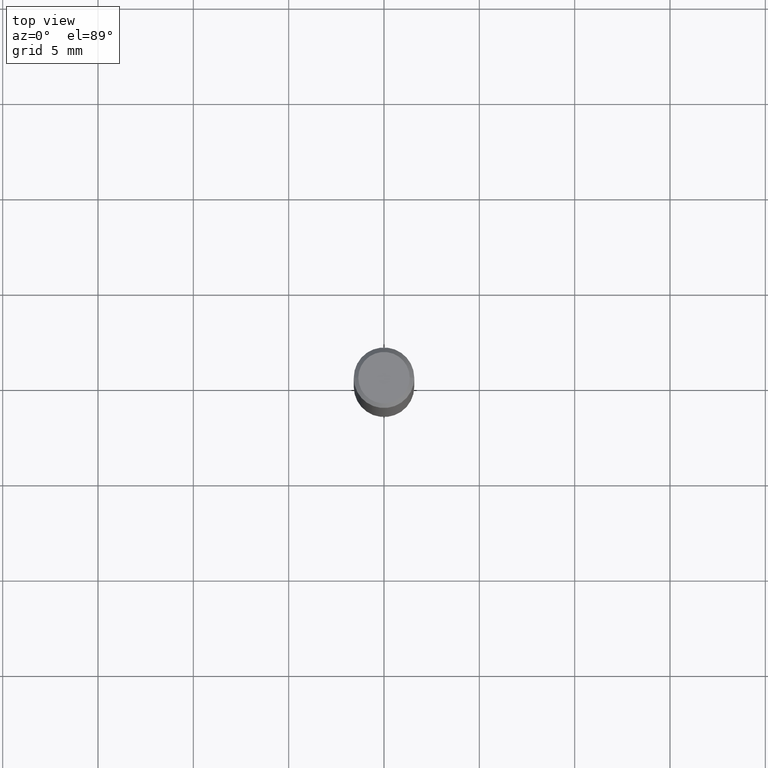
[diagram: clean part render]
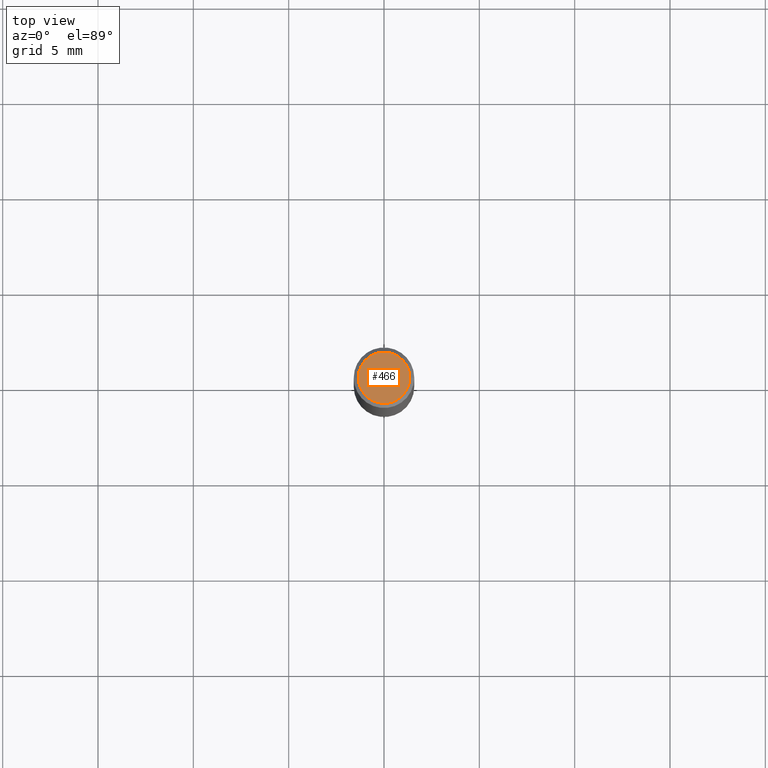
[diagram: same view with one face highlighted and labeled with its STEP entity id]
A machine part, top view. The second image highlights one B-rep face of the part: STEP entity #466.
In plain terms, the highlighted planar face has unit normal (0, -0, -1).
Its self-contained STEP definition (entity closure, byte-faithful):
#2 = EDGE_CURVE ( 'NONE', #264, #329, #456, .T. ) ;
#11 = FACE_OUTER_BOUND ( 'NONE', #256, .T. ) ;
#41 = ORIENTED_EDGE ( 'NONE', *, *, #340, .T. ) ;
#109 = CARTESIAN_POINT ( 'NONE',  ( -0.05312499999999999861, 3.873362110279099094E-16, -5.787680772773044021E-18 ) ) ;
#127 = DIRECTION ( 'NONE',  ( -1.000000000000000000, 6.982962677686265922E-15, -4.876176775795935793E-29 ) ) ;
#142 = DIRECTION ( 'NONE',  ( -2.445468806185136597E-29, 3.491481338843145583E-15, 1.000000000000000000 ) ) ;
#200 = CARTESIAN_POINT ( 'NONE',  ( 1.415359278996747967E-46, -2.020757941330909984E-32, -5.787680772770392401E-18 ) ) ;
#207 = DIRECTION ( 'NONE',  ( -2.445468806185136597E-29, 3.491481338843145583E-15, 1.000000000000000000 ) ) ;
#239 = AXIS2_PLACEMENT_3D ( 'NONE', #200, #207, #390 ) ;
#256 = EDGE_LOOP ( 'NONE', ( #359, #41 ) ) ;
#264 = VERTEX_POINT ( 'NONE', #109 ) ;
#271 = AXIS2_PLACEMENT_3D ( 'NONE', #590, #142, #332 ) ;
#312 = PLANE ( 'NONE',  #394 ) ;
#329 = VERTEX_POINT ( 'NONE', #472 ) ;
#332 = DIRECTION ( 'NONE',  ( 1.000000000000000000, -6.982962677686266711E-15, 4.875930095424100059E-29 ) ) ;
#340 = EDGE_CURVE ( 'NONE', #329, #264, #499, .T. ) ;
#359 = ORIENTED_EDGE ( 'NONE', *, *, #2, .T. ) ;
#387 = CARTESIAN_POINT ( 'NONE',  ( 7.076796394983739835E-47, -1.010378970665454992E-32, -2.893840386385196200E-18 ) ) ;
#390 = DIRECTION ( 'NONE',  ( 1.000000000000000000, -6.982962677686266711E-15, 4.875930095424100059E-29 ) ) ;
#394 = AXIS2_PLACEMENT_3D ( 'NONE', #387, #477, #127 ) ;
#456 = CIRCLE ( 'NONE', #271, 0.05312499999999999861 ) ;
#466 = ADVANCED_FACE ( 'NONE', ( #11 ), #312, .F. ) ;
#472 = CARTESIAN_POINT ( 'NONE',  ( 0.05312499999999999861, -4.129888592719939842E-16, -5.787680772767651417E-18 ) ) ;
#477 = DIRECTION ( 'NONE',  ( 2.438088387897960049E-29, -3.491481338843145188E-15, -1.000000000000000000 ) ) ;
#499 = CIRCLE ( 'NONE', #239, 0.05312499999999999861 ) ;
#590 = CARTESIAN_POINT ( 'NONE',  ( 1.415359278996747967E-46, -2.020757941330909984E-32, -5.787680772770392401E-18 ) ) ;